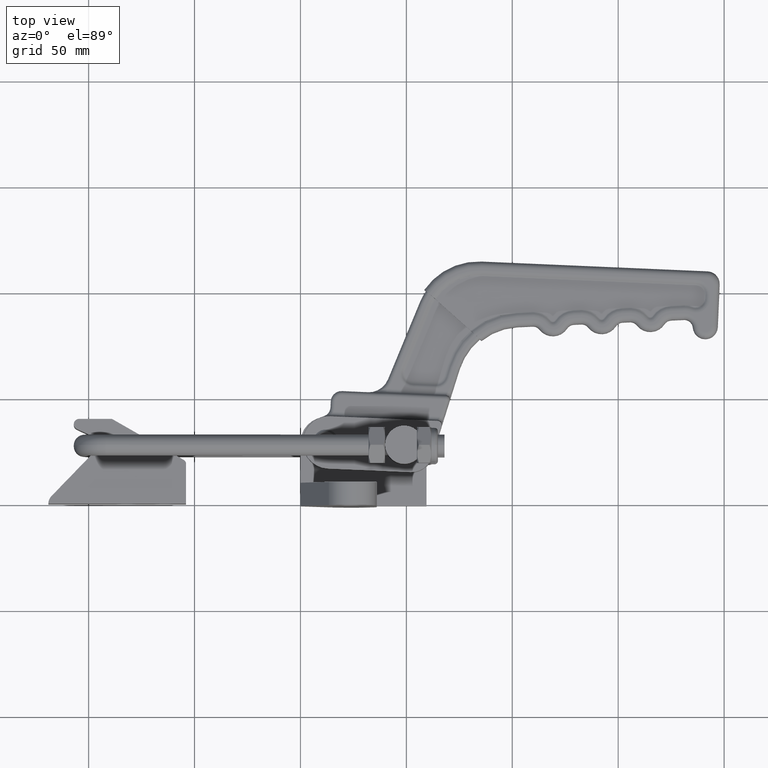
[diagram: clean part render]
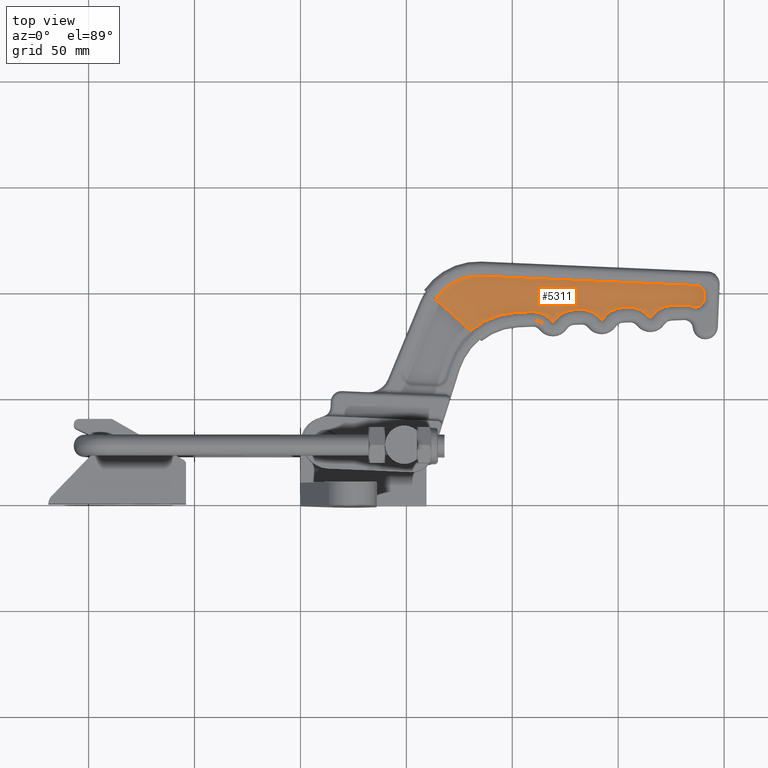
[diagram: same view with one face highlighted and labeled with its STEP entity id]
A machine part, top view. The second image highlights one B-rep face of the part: STEP entity #5311.
In plain terms, the highlighted planar face has unit normal (0, 0, 1).
Its self-contained STEP definition (entity closure, byte-faithful):
#18 = LINE ( 'NONE', #15968, #15455 ) ;
#20 = ORIENTED_EDGE ( 'NONE', *, *, #12234, .T. ) ;
#181 = CIRCLE ( 'NONE', #3383, 10.91370050349639700 ) ;
#224 = LINE ( 'NONE', #18178, #19199 ) ;
#308 = AXIS2_PLACEMENT_3D ( 'NONE', #10994, #2032, #12499 ) ;
#358 = ORIENTED_EDGE ( 'NONE', *, *, #8249, .T. ) ;
#385 = VECTOR ( 'NONE', #15398, 1000.000000000000200 ) ;
#504 = DIRECTION ( 'NONE',  ( 0.9990645734454832700, -0.04324324324324533400, 0.0000000000000000000 ) ) ;
#735 = CARTESIAN_POINT ( 'NONE',  ( 190.6869162742107200, 96.83645423582432000, 6.999999999999985800 ) ) ;
#848 = EDGE_CURVE ( 'NONE', #11553, #3523, #15860, .T. ) ;
#850 = ORIENTED_EDGE ( 'NONE', *, *, #10967, .T. ) ;
#971 = CARTESIAN_POINT ( 'NONE',  ( 186.8676305403437300, 103.0937652892528700, 6.999999999999985800 ) ) ;
#1036 = VECTOR ( 'NONE', #17646, 999.9999999999998900 ) ;
#1068 = DIRECTION ( 'NONE',  ( 0.9990317281013673100, 0.04399552530423517200, 0.0000000000000000000 ) ) ;
#1151 = CARTESIAN_POINT ( 'NONE',  ( 120.1192829575348200, 86.67250808100027400, 6.999999999999985800 ) ) ;
#1405 = VERTEX_POINT ( 'NONE', #3660 ) ;
#1407 = VERTEX_POINT ( 'NONE', #19214 ) ;
#1448 = EDGE_CURVE ( 'NONE', #17290, #13323, #3178, .T. ) ;
#1524 = CARTESIAN_POINT ( 'NONE',  ( 190.7734027606971700, 98.83458338271526600, 6.999999999999985800 ) ) ;
#1735 = CIRCLE ( 'NONE', #9948, 1.086299496504791000 ) ;
#1774 = VERTEX_POINT ( 'NONE', #6794 ) ;
#1829 = EDGE_CURVE ( 'NONE', #12671, #17687, #3458, .T. ) ;
#1833 = ORIENTED_EDGE ( 'NONE', *, *, #1448, .T. ) ;
#1835 = DIRECTION ( 'NONE',  ( -0.0000000000000000000, -0.0000000000000000000, -1.000000000000000000 ) ) ;
#1945 = CARTESIAN_POINT ( 'NONE',  ( 190.7734027606971900, 98.83458338271529400, 6.999999999999985800 ) ) ;
#2015 = CARTESIAN_POINT ( 'NONE',  ( 132.7582719161204600, 80.85661037552780800, 6.999999999999985800 ) ) ;
#2032 = DIRECTION ( 'NONE',  ( -0.0000000000000000000, -0.0000000000000000000, 1.000000000000000000 ) ) ;
#2209 = VERTEX_POINT ( 'NONE', #14689 ) ;
#2381 = AXIS2_PLACEMENT_3D ( 'NONE', #2015, #12475, #504 ) ;
#2402 = DIRECTION ( 'NONE',  ( 0.9990317281013678700, 0.04399552530422326500, 0.0000000000000000000 ) ) ;
#2567 = ORIENTED_EDGE ( 'NONE', *, *, #18332, .T. ) ;
#2617 = CARTESIAN_POINT ( 'NONE',  ( 63.79989810509152900, 96.53826723397665400, 6.999999999999985800 ) ) ;
#2655 = VERTEX_POINT ( 'NONE', #12552 ) ;
#2699 = EDGE_CURVE ( 'NONE', #6484, #12671, #1735, .T. ) ;
#2989 = CARTESIAN_POINT ( 'NONE',  ( 103.7663703955348200, 54.55562993829771300, 6.999999999999985800 ) ) ;
#3112 = AXIS2_PLACEMENT_3D ( 'NONE', #5210, #12725, #11218 ) ;
#3119 = CARTESIAN_POINT ( 'NONE',  ( 174.7305612712750400, 93.62927120597828400, 6.999999999999985800 ) ) ;
#3141 = PLANE ( 'NONE',  #7065 ) ;
#3178 = CIRCLE ( 'NONE', #3112, 24.08629949650427100 ) ;
#3226 = ORIENTED_EDGE ( 'NONE', *, *, #18117, .T. ) ;
#3383 = AXIS2_PLACEMENT_3D ( 'NONE', #6369, #11453, #12900 ) ;
#3458 = CIRCLE ( 'NONE', #15792, 10.91370050349639700 ) ;
#3523 = VERTEX_POINT ( 'NONE', #6779 ) ;
#3549 = CARTESIAN_POINT ( 'NONE',  ( 175.2107152579391700, 82.72613813198950100, 6.999999999999985800 ) ) ;
#3660 = CARTESIAN_POINT ( 'NONE',  ( 132.2781179294560700, 91.75974344951659100, 6.999999999999985800 ) ) ;
#4061 = CARTESIAN_POINT ( 'NONE',  ( 131.0982929010198700, 36.59615476506554900, 6.999999999999985800 ) ) ;
#4112 = DIRECTION ( 'NONE',  ( -0.0000000000000000000, -0.0000000000000000000, -1.000000000000000000 ) ) ;
#4463 = DIRECTION ( 'NONE',  ( 0.9990645734454833800, -0.04324324324324317600, 0.0000000000000000000 ) ) ;
#4601 = CARTESIAN_POINT ( 'NONE',  ( 165.1653897830659900, 89.29054489146760400, 6.999999999999985800 ) ) ;
#4767 = CARTESIAN_POINT ( 'NONE',  ( 109.7805421697886300, 79.84471329353048900, 6.999999999999985800 ) ) ;
#4915 = CARTESIAN_POINT ( 'NONE',  ( 129.2552557652767900, 80.70234396799490600, 6.999999999999985800 ) ) ;
#4970 = DIRECTION ( 'NONE',  ( 0.9990645734454834900, -0.04324324324324152500, 0.0000000000000000000 ) ) ;
#5172 = VERTEX_POINT ( 'NONE', #11428 ) ;
#5210 = CARTESIAN_POINT ( 'NONE',  ( 84.01139015255762400, 83.43691567581602400, 6.999999999999985800 ) ) ;
#5305 = ORIENTED_EDGE ( 'NONE', *, *, #13472, .T. ) ;
#5311 = ADVANCED_FACE ( 'NONE', ( #16489 ), #3141, .T. ) ;
#5467 = CIRCLE ( 'NONE', #19142, 10.91370050349642500 ) ;
#5510 = AXIS2_PLACEMENT_3D ( 'NONE', #2989, #13453, #4463 ) ;
#5640 = DIRECTION ( 'NONE',  ( -0.0000000000000000000, -0.0000000000000000000, -1.000000000000000000 ) ) ;
#5721 = DIRECTION ( 'NONE',  ( -0.0000000000000000000, -0.0000000000000000000, -1.000000000000000000 ) ) ;
#6104 = DIRECTION ( 'NONE',  ( -0.9990645734454837200, 0.04324324324323380900, 0.0000000000000000000 ) ) ;
#6287 = CARTESIAN_POINT ( 'NONE',  ( 118.3563353264221700, 86.59487110017879300, 6.999999999999985800 ) ) ;
#6369 = CARTESIAN_POINT ( 'NONE',  ( 155.7360016624522000, 81.86850745752511200, 6.999999999999985800 ) ) ;
#6443 = EDGE_CURVE ( 'NONE', #5172, #8947, #7303, .T. ) ;
#6484 = VERTEX_POINT ( 'NONE', #6287 ) ;
#6579 = CARTESIAN_POINT ( 'NONE',  ( 152.2329855116079200, 81.71424104999219700, 6.999999999999985800 ) ) ;
#6629 = ORIENTED_EDGE ( 'NONE', *, *, #9311, .F. ) ;
#6776 = LINE ( 'NONE', #7288, #14760 ) ;
#6779 = CARTESIAN_POINT ( 'NONE',  ( 185.1517286366206500, 93.19380369313471100, 6.999999999999985800 ) ) ;
#6794 = CARTESIAN_POINT ( 'NONE',  ( 102.1863282762651700, 90.43455621482053200, 6.999999999999985800 ) ) ;
#6810 = DIRECTION ( 'NONE',  ( 0.9990645734454832700, -0.04324324324324533400, 0.0000000000000000000 ) ) ;
#7065 = AXIS2_PLACEMENT_3D ( 'NONE', #11452, #15800, #17003 ) ;
#7146 = EDGE_LOOP ( 'NONE', ( #6629, #17515, #11186, #20, #18811, #8674, #16557, #13302, #3226, #9338, #850, #11303, #5305, #358, #17535, #12462, #18582, #12053, #17532, #2567, #1833 ) ) ;
#7245 = CARTESIAN_POINT ( 'NONE',  ( 128.7751017786124000, 91.60547704198369000, 6.999999999999985800 ) ) ;
#7276 = CARTESIAN_POINT ( 'NONE',  ( 181.2718250372789700, 82.99305829194865700, 6.999999999999985800 ) ) ;
#7288 = CARTESIAN_POINT ( 'NONE',  ( 186.8676305403437500, 103.0937652892528700, 6.999999999999985800 ) ) ;
#7303 = CIRCLE ( 'NONE', #9896, 10.91370050349642400 ) ;
#7718 = AXIS2_PLACEMENT_3D ( 'NONE', #14068, #8066, #15781 ) ;
#8066 = DIRECTION ( 'NONE',  ( -0.0000000000000000000, -0.0000000000000000000, 1.000000000000000000 ) ) ;
#8155 = VECTOR ( 'NONE', #15218, 999.9999999999998900 ) ;
#8249 = EDGE_CURVE ( 'NONE', #1407, #13301, #9317, .T. ) ;
#8312 = CARTESIAN_POINT ( 'NONE',  ( 142.1876600367344800, 88.27864780947082600, 6.999999999999985800 ) ) ;
#8555 = EDGE_CURVE ( 'NONE', #1405, #2209, #14652, .T. ) ;
#8674 = ORIENTED_EDGE ( 'NONE', *, *, #1829, .T. ) ;
#8850 = DIRECTION ( 'NONE',  ( -0.7467405172117873600, 0.6651154786608656200, 0.0000000000000000000 ) ) ;
#8947 = VERTEX_POINT ( 'NONE', #14209 ) ;
#9071 = VERTEX_POINT ( 'NONE', #15198 ) ;
#9203 = CARTESIAN_POINT ( 'NONE',  ( 180.7916710506151500, 93.89619136593678700, 6.999999999999985800 ) ) ;
#9272 = VERTEX_POINT ( 'NONE', #19009 ) ;
#9311 = EDGE_CURVE ( 'NONE', #9272, #13323, #16223, .T. ) ;
#9317 = CIRCLE ( 'NONE', #10180, 10.91370050349639900 ) ;
#9338 = ORIENTED_EDGE ( 'NONE', *, *, #6443, .T. ) ;
#9807 = DIRECTION ( 'NONE',  ( -0.9990645734454834900, 0.04324324324323944300, 0.0000000000000000000 ) ) ;
#9896 = AXIS2_PLACEMENT_3D ( 'NONE', #6579, #4112, #13496 ) ;
#9948 = AXIS2_PLACEMENT_3D ( 'NONE', #15699, #12221, #17642 ) ;
#10144 = AXIS2_PLACEMENT_3D ( 'NONE', #4601, #15091, #6104 ) ;
#10180 = AXIS2_PLACEMENT_3D ( 'NONE', #3549, #1835, #6810 ) ;
#10306 = EDGE_CURVE ( 'NONE', #9071, #2655, #181, .T. ) ;
#10641 = EDGE_CURVE ( 'NONE', #13301, #11553, #18412, .T. ) ;
#10967 = EDGE_CURVE ( 'NONE', #8947, #9071, #224, .T. ) ;
#10994 = CARTESIAN_POINT ( 'NONE',  ( 186.6044392107652100, 97.01315907891638800, 6.999999999999985800 ) ) ;
#11186 = ORIENTED_EDGE ( 'NONE', *, *, #11446, .T. ) ;
#11218 = DIRECTION ( 'NONE',  ( -0.9990645734454833800, 0.04324324324324241300, 0.0000000000000000000 ) ) ;
#11303 = ORIENTED_EDGE ( 'NONE', *, *, #10306, .T. ) ;
#11428 = CARTESIAN_POINT ( 'NONE',  ( 143.0970127038662600, 87.68440516299803300, 6.999999999999985800 ) ) ;
#11446 = EDGE_CURVE ( 'NONE', #1774, #17368, #16093, .T. ) ;
#11452 = CARTESIAN_POINT ( 'NONE',  ( 186.6909256972516600, 99.01128822580736300, 6.999999999999985800 ) ) ;
#11453 = DIRECTION ( 'NONE',  ( -0.0000000000000000000, -0.0000000000000000000, -1.000000000000000000 ) ) ;
#11553 = VERTEX_POINT ( 'NONE', #9203 ) ;
#12053 = ORIENTED_EDGE ( 'NONE', *, *, #16071, .T. ) ;
#12221 = DIRECTION ( 'NONE',  ( -0.0000000000000000000, -0.0000000000000000000, 1.000000000000000000 ) ) ;
#12234 = EDGE_CURVE ( 'NONE', #17368, #6484, #5467, .T. ) ;
#12315 = EDGE_CURVE ( 'NONE', #17777, #18219, #12558, .T. ) ;
#12462 = ORIENTED_EDGE ( 'NONE', *, *, #848, .T. ) ;
#12475 = DIRECTION ( 'NONE',  ( -0.0000000000000000000, -0.0000000000000000000, -1.000000000000000000 ) ) ;
#12484 = DIRECTION ( 'NONE',  ( -0.0000000000000000000, -0.0000000000000000000, -1.000000000000000000 ) ) ;
#12499 = DIRECTION ( 'NONE',  ( -0.9990645734454833800, 0.04324324324324462600, 0.0000000000000000000 ) ) ;
#12552 = CARTESIAN_POINT ( 'NONE',  ( 164.3117948190855500, 88.61866526417365700, 6.999999999999985800 ) ) ;
#12558 = CIRCLE ( 'NONE', #7718, 4.086299496504265600 ) ;
#12671 = VERTEX_POINT ( 'NONE', #1151 ) ;
#12718 = VECTOR ( 'NONE', #8850, 1000.000000000000100 ) ;
#12725 = DIRECTION ( 'NONE',  ( -0.0000000000000000000, -0.0000000000000000000, 1.000000000000000000 ) ) ;
#12900 = DIRECTION ( 'NONE',  ( 0.9990645734454834900, -0.04324324324324025500, 0.0000000000000000000 ) ) ;
#13257 = CARTESIAN_POINT ( 'NONE',  ( 85.05295986051456200, 107.5006842081712400, 6.999999999999985800 ) ) ;
#13301 = VERTEX_POINT ( 'NONE', #17517 ) ;
#13302 = ORIENTED_EDGE ( 'NONE', *, *, #8555, .T. ) ;
#13323 = VERTEX_POINT ( 'NONE', #2617 ) ;
#13453 = DIRECTION ( 'NONE',  ( -0.0000000000000000000, -0.0000000000000000000, -1.000000000000000000 ) ) ;
#13472 = EDGE_CURVE ( 'NONE', #2655, #1407, #14370, .T. ) ;
#13496 = DIRECTION ( 'NONE',  ( 0.9990645734454836100, -0.04324324324323888100, 0.0000000000000000000 ) ) ;
#13611 = AXIS2_PLACEMENT_3D ( 'NONE', #8312, #18748, #9807 ) ;
#13651 = VERTEX_POINT ( 'NONE', #735 ) ;
#13952 = LINE ( 'NONE', #1945, #385 ) ;
#14068 = CARTESIAN_POINT ( 'NONE',  ( 186.6909256972516600, 99.01128822580736300, 6.999999999999985800 ) ) ;
#14128 = CIRCLE ( 'NONE', #5510, 35.91370050349624400 ) ;
#14209 = CARTESIAN_POINT ( 'NONE',  ( 151.7528315249435600, 92.61737412398099400, 6.999999999999985800 ) ) ;
#14370 = CIRCLE ( 'NONE', #10144, 1.086299496504304700 ) ;
#14652 = CIRCLE ( 'NONE', #2381, 10.91370050349639900 ) ;
#14660 = DIRECTION ( 'NONE',  ( 0.9990645734454834900, -0.04324324324324141400, 0.0000000000000000000 ) ) ;
#14689 = CARTESIAN_POINT ( 'NONE',  ( 141.3340650727536500, 87.60676818217653800, 6.999999999999985800 ) ) ;
#14760 = VECTOR ( 'NONE', #17755, 1000.000000000000200 ) ;
#14960 = CARTESIAN_POINT ( 'NONE',  ( 102.1863282762651400, 90.43455621482061700, 6.999999999999985800 ) ) ;
#15091 = DIRECTION ( 'NONE',  ( -0.0000000000000000000, -0.0000000000000000000, 1.000000000000000000 ) ) ;
#15198 = CARTESIAN_POINT ( 'NONE',  ( 155.2558476757878600, 92.77164053151389600, 6.999999999999985800 ) ) ;
#15218 = DIRECTION ( 'NONE',  ( 0.9990317281013698600, 0.04399552530418017500, 0.0000000000000000000 ) ) ;
#15398 = DIRECTION ( 'NONE',  ( 0.04324324324324325300, 0.9990645734454833800, -0.0000000000000000000 ) ) ;
#15412 = EDGE_CURVE ( 'NONE', #17687, #1405, #18, .T. ) ;
#15455 = VECTOR ( 'NONE', #1068, 1000.000000000000200 ) ;
#15536 = CIRCLE ( 'NONE', #308, 4.086299496504265600 ) ;
#15699 = CARTESIAN_POINT ( 'NONE',  ( 119.2099302904030800, 87.26675072747301000, 6.999999999999985800 ) ) ;
#15781 = DIRECTION ( 'NONE',  ( -0.9990645734454833800, 0.04324324324324462600, 0.0000000000000000000 ) ) ;
#15792 = AXIS2_PLACEMENT_3D ( 'NONE', #4915, #12484, #4970 ) ;
#15800 = DIRECTION ( 'NONE',  ( 0.0000000000000000000, 0.0000000000000000000, 1.000000000000000000 ) ) ;
#15860 = CIRCLE ( 'NONE', #16288, 10.91370050349573300 ) ;
#15968 = CARTESIAN_POINT ( 'NONE',  ( 128.7751017786124200, 91.60547704198369000, 6.999999999999985800 ) ) ;
#16071 = EDGE_CURVE ( 'NONE', #13651, #17777, #13952, .T. ) ;
#16093 = LINE ( 'NONE', #14960, #8155 ) ;
#16223 = LINE ( 'NONE', #4061, #12718 ) ;
#16248 = DIRECTION ( 'NONE',  ( 0.9990645734454832700, -0.04324324324324797100, 0.0000000000000000000 ) ) ;
#16288 = AXIS2_PLACEMENT_3D ( 'NONE', #7276, #5721, #16248 ) ;
#16429 = CIRCLE ( 'NONE', #13611, 1.086299496504805000 ) ;
#16489 = FACE_OUTER_BOUND ( 'NONE', #7146, .T. ) ;
#16557 = ORIENTED_EDGE ( 'NONE', *, *, #15412, .T. ) ;
#17003 = DIRECTION ( 'NONE',  ( -0.9990645734454834900, 0.04324324324324326000, 0.0000000000000000000 ) ) ;
#17078 = EDGE_CURVE ( 'NONE', #3523, #13651, #15536, .T. ) ;
#17290 = VERTEX_POINT ( 'NONE', #13257 ) ;
#17358 = EDGE_CURVE ( 'NONE', #9272, #1774, #14128, .T. ) ;
#17368 = VERTEX_POINT ( 'NONE', #19438 ) ;
#17515 = ORIENTED_EDGE ( 'NONE', *, *, #17358, .T. ) ;
#17517 = CARTESIAN_POINT ( 'NONE',  ( 174.7305612712750600, 93.62927120597829900, 6.999999999999985800 ) ) ;
#17532 = ORIENTED_EDGE ( 'NONE', *, *, #12315, .T. ) ;
#17535 = ORIENTED_EDGE ( 'NONE', *, *, #10641, .T. ) ;
#17642 = DIRECTION ( 'NONE',  ( -0.9990645734454834900, 0.04324324324323999800, 0.0000000000000000000 ) ) ;
#17646 = DIRECTION ( 'NONE',  ( 0.9990317281013694200, 0.04399552530419025000, 0.0000000000000000000 ) ) ;
#17687 = VERTEX_POINT ( 'NONE', #7245 ) ;
#17755 = DIRECTION ( 'NONE',  ( -0.9990645734454833800, 0.04324324324324325300, 0.0000000000000000000 ) ) ;
#17777 = VERTEX_POINT ( 'NONE', #1524 ) ;
#18117 = EDGE_CURVE ( 'NONE', #2209, #5172, #16429, .T. ) ;
#18178 = CARTESIAN_POINT ( 'NONE',  ( 151.7528315249435600, 92.61737412398100800, 6.999999999999985800 ) ) ;
#18219 = VERTEX_POINT ( 'NONE', #971 ) ;
#18332 = EDGE_CURVE ( 'NONE', #18219, #17290, #6776, .T. ) ;
#18412 = LINE ( 'NONE', #3119, #1036 ) ;
#18582 = ORIENTED_EDGE ( 'NONE', *, *, #17078, .T. ) ;
#18748 = DIRECTION ( 'NONE',  ( -0.0000000000000000000, -0.0000000000000000000, 1.000000000000000000 ) ) ;
#18811 = ORIENTED_EDGE ( 'NONE', *, *, #2699, .T. ) ;
#19009 = CARTESIAN_POINT ( 'NONE',  ( 80.35668445600566700, 81.79127731572272400, 6.999999999999985800 ) ) ;
#19142 = AXIS2_PLACEMENT_3D ( 'NONE', #4767, #5640, #14660 ) ;
#19199 = VECTOR ( 'NONE', #2402, 1000.000000000000100 ) ;
#19214 = CARTESIAN_POINT ( 'NONE',  ( 166.0747424501973300, 88.69630224499509600, 6.999999999999985800 ) ) ;
#19438 = CARTESIAN_POINT ( 'NONE',  ( 109.3003881831242400, 90.74784636751927300, 6.999999999999985800 ) ) ;